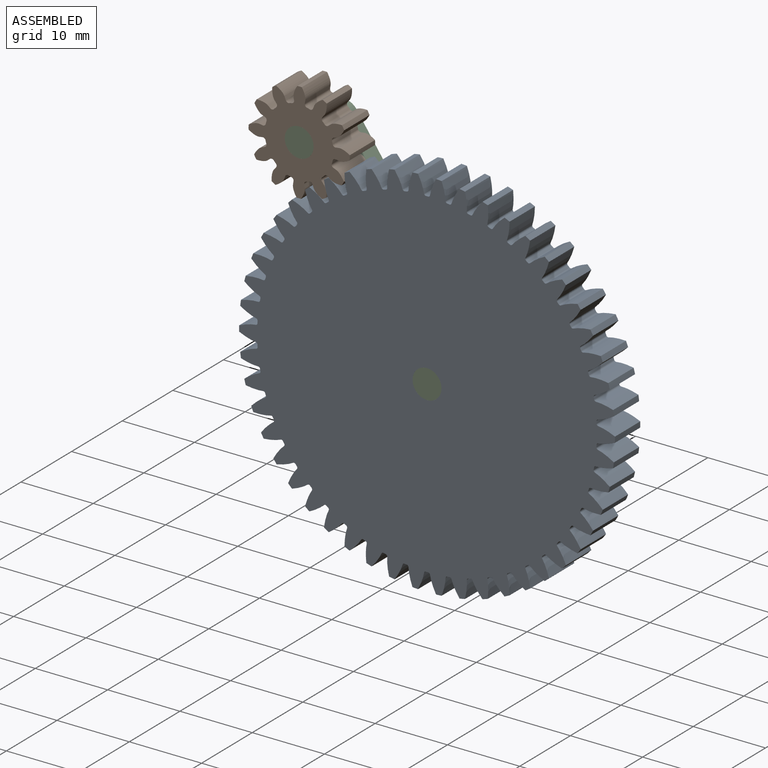
[diagram: assembled view]
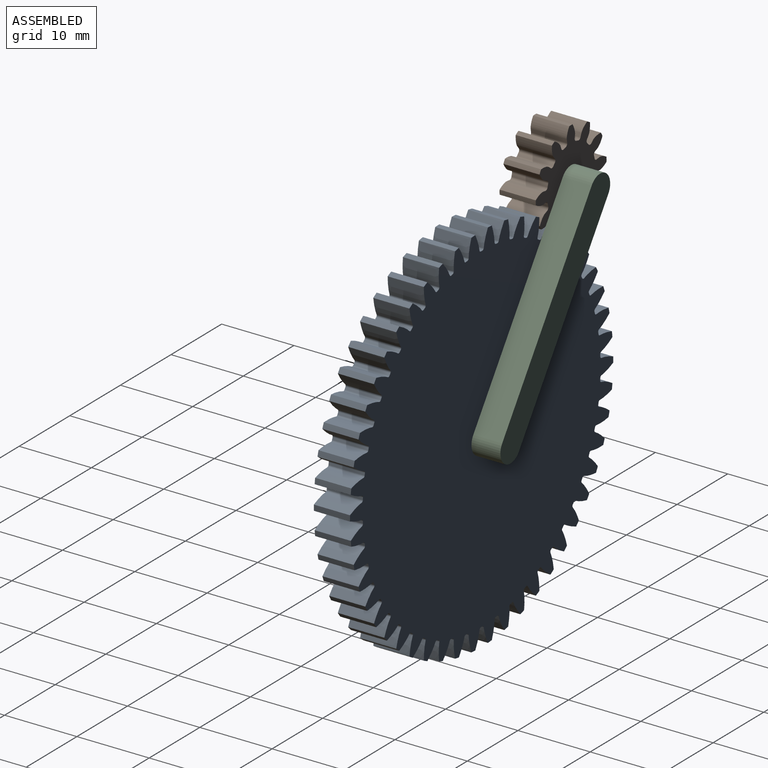
[diagram: assembled view, second angle]
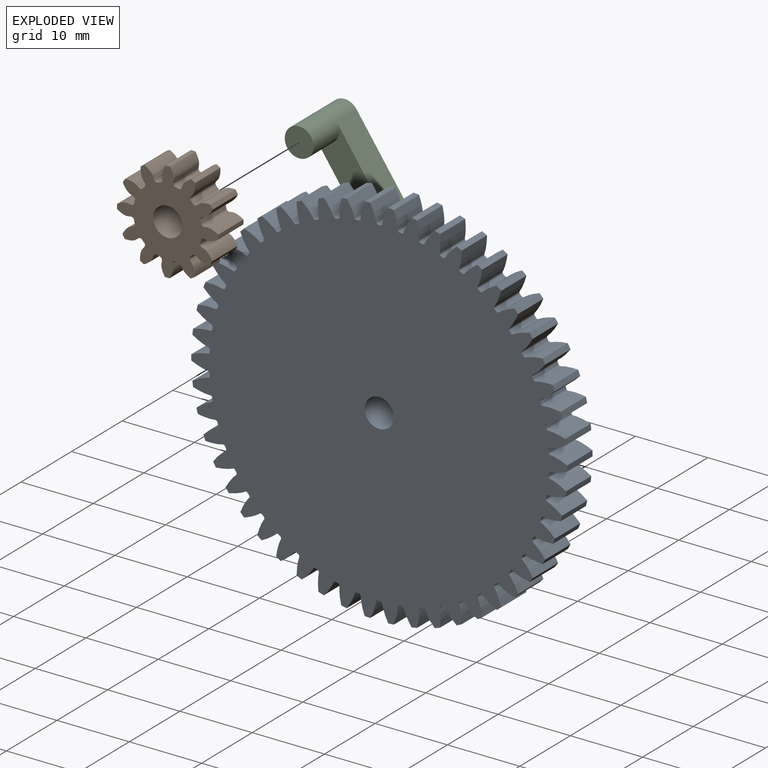
[diagram: exploded view]
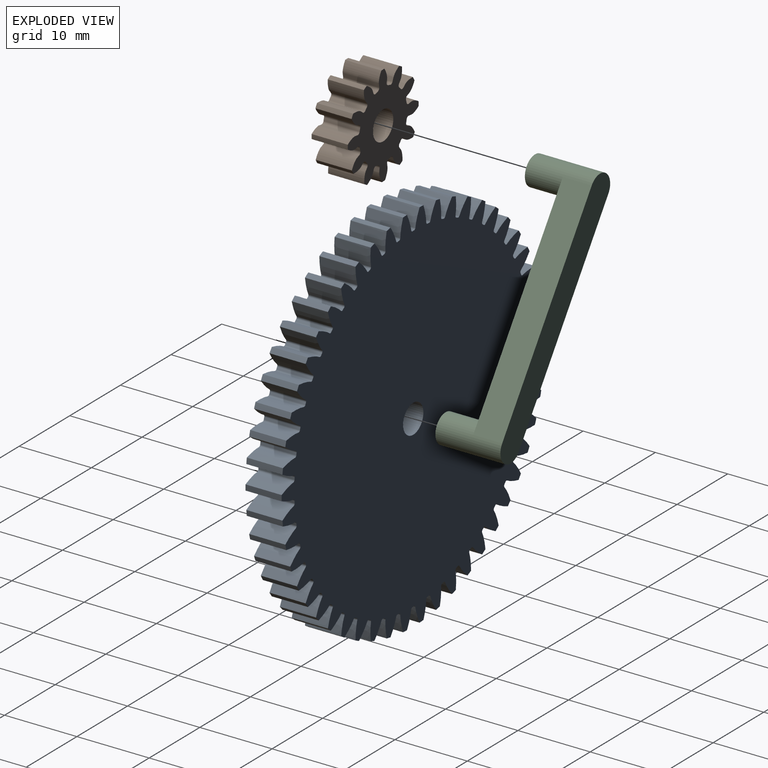
[diagram: exploded view, second angle]
ASSEMBLY  parts=3 mates=2
PART A: 303 faces, bbox 52x5x51.9 mm
  f0: extruded ~5x2.31mm, area 12.1mm2, adj f200,f201,f202,f203
  f1: cylinder r=23.49mm len=5mm, axis (0,1,0), area 1.5mm2, adj f201,f202,f203,f204
  f2: extruded ~5x2.2mm, area 12.1mm2, adj f3,f201,f202,f204
  f3: cylinder r=26mm len=5mm, axis (0,1,0), area 3.9mm2, adj f2,f4,f201,f202
  f4: extruded ~5x2.38mm, area 12.1mm2, adj f3,f201,f202,f205
  f5: cylinder r=23.49mm len=5mm, axis (0,1,0), area 1.5mm2, adj f201,f202,f205,f206
  f6: extruded ~5x2.06mm, area 12.1mm2, adj f7,f201,f202,f206
  f7: cylinder r=26mm len=5mm, axis (0,1,0), area 3.9mm2, adj f6,f8,f201,f202
  f8: extruded ~5x2.41mm, area 12.1mm2, adj f7,f201,f202,f207
  f9: cylinder r=23.49mm len=5mm, axis (0,1,0), area 1.5mm2, adj f201,f202,f207,f208
  f10: extruded ~5x1.89mm, area 12.1mm2, adj f11,f201,f202,f208
  f11: cylinder r=26mm len=5mm, axis (0,1,0), area 3.9mm2, adj f10,f12,f201,f202
  f12: extruded ~5x2.4mm, area 12.1mm2, adj f11,f201,f202,f209
  f13: cylinder r=23.49mm len=5mm, axis (0,1,0), area 1.5mm2, adj f201,f202,f209,f210
  f14: extruded ~5x1.72mm, area 12.1mm2, adj f15,f201,f202,f210
  f15: cylinder r=26mm len=5mm, axis (0,1,0), area 3.9mm2, adj f14,f16,f201,f202
  f16: extruded ~5x2.36mm, area 12.1mm2, adj f15,f201,f202,f211
  f17: cylinder r=23.49mm len=5mm, axis (0,1,0), area 1.5mm2, adj f201,f202,f211,f212
  f18: extruded ~5x1.92mm, area 12.1mm2, adj f19,f201,f202,f212
  f19: cylinder r=26mm len=5mm, axis (0,1,0), area 3.9mm2, adj f18,f20,f201,f202
  f20: extruded ~5x2.27mm, area 12.1mm2, adj f19,f201,f202,f213
  f21: cylinder r=23.49mm len=5mm, axis (0,1,0), area 1.5mm2, adj f201,f202,f213,f214
  f22: extruded ~5x2.08mm, area 12.1mm2, adj f23,f201,f202,f214
  f23: cylinder r=26mm len=5mm, axis (0,1,0), area 3.9mm2, adj f22,f24,f201,f202
  f24: extruded ~5x2.16mm, area 12.1mm2, adj f23,f201,f202,f215
  f25: cylinder r=23.49mm len=5mm, axis (0,1,0), area 1.5mm2, adj f201,f202,f215,f216
  f26: extruded ~5x2.22mm, area 12.1mm2, adj f27,f201,f202,f216
  f27: cylinder r=26mm len=5mm, axis (0,1,0), area 3.9mm2, adj f26,f28,f201,f202
  f28: extruded ~5x2mm, area 12.1mm2, adj f27,f201,f202,f217
  f29: cylinder r=23.49mm len=5mm, axis (0,1,0), area 1.5mm2, adj f201,f202,f217,f218
  f30: extruded ~5x2.32mm, area 12.1mm2, adj f31,f201,f202,f218
  f31: cylinder r=26mm len=5mm, axis (0,1,0), area 3.9mm2, adj f30,f32,f201,f202
  f32: extruded ~5x1.82mm, area 12.1mm2, adj f31,f201,f202,f219
  f33: cylinder r=23.49mm len=5mm, axis (0,1,0), area 1.5mm2, adj f201,f202,f219,f220
  f34: extruded ~5x2.38mm, area 12.1mm2, adj f35,f201,f202,f220
  f35: cylinder r=26mm len=5mm, axis (0,1,0), area 3.9mm2, adj f34,f36,f201,f202
  f36: extruded ~5x1.79mm, area 12.1mm2, adj f35,f201,f202,f221
  f37: cylinder r=23.49mm len=5mm, axis (0,1,0), area 1.5mm2, adj f201,f202,f221,f222
  f38: extruded ~5x2.41mm, area 12.1mm2, adj f39,f201,f202,f222
  f39: cylinder r=26mm len=5mm, axis (0,1,0), area 3.9mm2, adj f38,f40,f201,f202
  f40: extruded ~5x1.98mm, area 12.1mm2, adj f39,f201,f202,f223
  f41: cylinder r=23.49mm len=5mm, axis (0,1,0), area 1.5mm2, adj f201,f202,f223,f224
  f42: extruded ~5x2.4mm, area 12.1mm2, adj f43,f201,f202,f224
  f43: cylinder r=26mm len=5mm, axis (0,1,0), area 3.9mm2, adj f42,f44,f201,f202
  f44: extruded ~5x2.14mm, area 12.1mm2, adj f43,f201,f202,f225
  f45: cylinder r=23.49mm len=5mm, axis (0,1,0), area 1.5mm2, adj f201,f202,f225,f226
  f46: extruded ~5x2.35mm, area 12.1mm2, adj f47,f201,f202,f226
  f47: cylinder r=26mm len=5mm, axis (0,1,0), area 3.9mm2, adj f46,f48,f201,f202
  f48: extruded ~5x2.26mm, area 12.1mm2, adj f47,f201,f202,f227
  f49: cylinder r=23.49mm len=5mm, axis (0,1,0), area 1.5mm2, adj f201,f202,f227,f228
  f50: extruded ~5x2.26mm, area 12.1mm2, adj f51,f201,f202,f228
  f51: cylinder r=26mm len=5mm, axis (0,1,0), area 3.9mm2, adj f50,f52,f201,f202
  f52: extruded ~5x2.35mm, area 12.1mm2, adj f51,f201,f202,f229
  f53: cylinder r=23.49mm len=5mm, axis (0,1,0), area 1.5mm2, adj f201,f202,f229,f230
  f54: extruded ~5x2.14mm, area 12.1mm2, adj f55,f201,f202,f230
  f55: cylinder r=26mm len=5mm, axis (0,1,0), area 3.9mm2, adj f54,f56,f201,f202
  f56: extruded ~5x2.4mm, area 12.1mm2, adj f55,f201,f202,f231
  f57: cylinder r=23.49mm len=5mm, axis (0,1,0), area 1.5mm2, adj f201,f202,f231,f232
  f58: extruded ~5x1.98mm, area 12.1mm2, adj f59,f201,f202,f232
  f59: cylinder r=26mm len=5mm, axis (0,1,0), area 3.9mm2, adj f58,f60,f201,f202
  f60: extruded ~5x2.41mm, area 12.1mm2, adj f59,f201,f202,f233
  f61: cylinder r=23.49mm len=5mm, axis (0,1,0), area 1.5mm2, adj f201,f202,f233,f234
  f62: extruded ~5x1.79mm, area 12.1mm2, adj f63,f201,f202,f234
  f63: cylinder r=26mm len=5mm, axis (0,1,0), area 3.9mm2, adj f62,f64,f201,f202
  f64: extruded ~5x2.38mm, area 12.1mm2, adj f63,f201,f202,f235
  f65: cylinder r=23.49mm len=5mm, axis (0,1,0), area 1.5mm2, adj f201,f202,f235,f236
  f66: extruded ~5x1.82mm, area 12.1mm2, adj f67,f201,f202,f236
  f67: cylinder r=26mm len=5mm, axis (0,1,0), area 3.9mm2, adj f66,f68,f201,f202
  f68: extruded ~5x2.32mm, area 12.1mm2, adj f67,f201,f202,f237
  f69: cylinder r=23.49mm len=5mm, axis (0,1,0), area 1.5mm2, adj f201,f202,f237,f238
  f70: extruded ~5x2mm, area 12.1mm2, adj f71,f201,f202,f238
  f71: cylinder r=26mm len=5mm, axis (0,1,0), area 3.9mm2, adj f70,f72,f201,f202
  f72: extruded ~5x2.22mm, area 12.1mm2, adj f71,f201,f202,f239
  f73: cylinder r=23.49mm len=5mm, axis (0,1,0), area 1.5mm2, adj f201,f202,f239,f240
  f74: extruded ~5x2.16mm, area 12.1mm2, adj f75,f201,f202,f240
  f75: cylinder r=26mm len=5mm, axis (0,1,0), area 3.9mm2, adj f74,f76,f201,f202
  f76: extruded ~5x2.08mm, area 12.1mm2, adj f75,f201,f202,f241
  f77: cylinder r=23.49mm len=5mm, axis (0,1,0), area 1.5mm2, adj f201,f202,f241,f242
  f78: extruded ~5x2.27mm, area 12.1mm2, adj f79,f201,f202,f242
  f79: cylinder r=26mm len=5mm, axis (0,1,0), area 3.9mm2, adj f78,f80,f201,f202
  f80: extruded ~5x1.92mm, area 12.1mm2, adj f79,f201,f202,f243
  f81: cylinder r=23.49mm len=5mm, axis (0,1,0), area 1.5mm2, adj f201,f202,f243,f244
  f82: extruded ~5x2.36mm, area 12.1mm2, adj f83,f201,f202,f244
  f83: cylinder r=26mm len=5mm, axis (0,1,0), area 3.9mm2, adj f82,f84,f201,f202
  f84: extruded ~5x1.72mm, area 12.1mm2, adj f83,f201,f202,f245
  f85: cylinder r=23.49mm len=5mm, axis (0,1,0), area 1.5mm2, adj f201,f202,f245,f246
  f86: extruded ~5x2.4mm, area 12.1mm2, adj f87,f201,f202,f246
  f87: cylinder r=26mm len=5mm, axis (0,1,0), area 3.9mm2, adj f86,f88,f201,f202
  f88: extruded ~5x1.89mm, area 12.1mm2, adj f87,f201,f202,f247
  f89: cylinder r=23.49mm len=5mm, axis (0,1,0), area 1.5mm2, adj f201,f202,f247,f248
  f90: extruded ~5x2.41mm, area 12.1mm2, adj f91,f201,f202,f248
  f91: cylinder r=26mm len=5mm, axis (0,1,0), area 3.9mm2, adj f90,f92,f201,f202
  f92: extruded ~5x2.06mm, area 12.1mm2, adj f91,f201,f202,f249
  f93: cylinder r=23.49mm len=5mm, axis (0,1,0), area 1.5mm2, adj f201,f202,f249,f250
  f94: extruded ~5x2.38mm, area 12.1mm2, adj f95,f201,f202,f250
  f95: cylinder r=26mm len=5mm, axis (0,1,0), area 3.9mm2, adj f94,f96,f201,f202
  f96: extruded ~5x2.2mm, area 12.1mm2, adj f95,f201,f202,f251
  f97: cylinder r=23.49mm len=5mm, axis (0,1,0), area 1.5mm2, adj f201,f202,f251,f252
  f98: extruded ~5x2.31mm, area 12.1mm2, adj f99,f201,f202,f252
  f99: cylinder r=26mm len=5mm, axis (0,1,0), area 3.9mm2, adj f98,f100,f201,f202
  f100: extruded ~5x2.31mm, area 12.1mm2, adj f99,f201,f202,f253
  f101: cylinder r=23.49mm len=5mm, axis (0,1,0), area 1.5mm2, adj f201,f202,f253,f254
  f102: extruded ~5x2.2mm, area 12.1mm2, adj f103,f201,f202,f254
  f103: cylinder r=26mm len=5mm, axis (0,1,0), area 3.9mm2, adj f102,f104,f201,f202
  f104: extruded ~5x2.38mm, area 12.1mm2, adj f103,f201,f202,f255
  f105: cylinder r=23.49mm len=5mm, axis (0,1,0), area 1.5mm2, adj f201,f202,f255,f256
  f106: extruded ~5x2.06mm, area 12.1mm2, adj f107,f201,f202,f256
  f107: cylinder r=26mm len=5mm, axis (0,1,0), area 3.9mm2, adj f106,f108,f201,f202
  f108: extruded ~5x2.41mm, area 12.1mm2, adj f107,f201,f202,f257
  f109: cylinder r=23.49mm len=5mm, axis (0,1,0), area 1.5mm2, adj f201,f202,f257,f258
  f110: extruded ~5x1.89mm, area 12.1mm2, adj f111,f201,f202,f258
  f111: cylinder r=26mm len=5mm, axis (0,1,0), area 3.9mm2, adj f110,f112,f201,f202
  f112: extruded ~5x2.4mm, area 12.1mm2, adj f111,f201,f202,f259
  f113: cylinder r=23.49mm len=5mm, axis (0,1,0), area 1.5mm2, adj f201,f202,f259,f260
  f114: extruded ~5x1.72mm, area 12.1mm2, adj f115,f201,f202,f260
  f115: cylinder r=26mm len=5mm, axis (0,1,0), area 3.9mm2, adj f114,f116,f201,f202
  f116: extruded ~5x2.36mm, area 12.1mm2, adj f115,f201,f202,f261
  f117: cylinder r=23.49mm len=5mm, axis (0,1,0), area 1.5mm2, adj f201,f202,f261,f262
  f118: extruded ~5x1.92mm, area 12.1mm2, adj f119,f201,f202,f262
  f119: cylinder r=26mm len=5mm, axis (0,1,0), area 3.9mm2, adj f118,f120,f201,f202
  f120: extruded ~5x2.27mm, area 12.1mm2, adj f119,f201,f202,f263
  f121: cylinder r=23.49mm len=5mm, axis (0,1,0), area 1.5mm2, adj f201,f202,f263,f264
  f122: extruded ~5x2.08mm, area 12.1mm2, adj f123,f201,f202,f264
  f123: cylinder r=26mm len=5mm, axis (0,1,0), area 3.9mm2, adj f122,f124,f201,f202
  f124: extruded ~5x2.16mm, area 12.1mm2, adj f123,f201,f202,f265
  f125: cylinder r=23.49mm len=5mm, axis (0,1,0), area 1.5mm2, adj f201,f202,f265,f266
  f126: extruded ~5x2.22mm, area 12.1mm2, adj f127,f201,f202,f266
  f127: cylinder r=26mm len=5mm, axis (0,1,0), area 3.9mm2, adj f126,f128,f201,f202
  f128: extruded ~5x2mm, area 12.1mm2, adj f127,f201,f202,f267
  f129: cylinder r=23.49mm len=5mm, axis (0,1,0), area 1.5mm2, adj f201,f202,f267,f268
  f130: extruded ~5x2.32mm, area 12.1mm2, adj f131,f201,f202,f268
  f131: cylinder r=26mm len=5mm, axis (0,1,0), area 3.9mm2, adj f130,f132,f201,f202
  f132: extruded ~5x1.82mm, area 12.1mm2, adj f131,f201,f202,f269
  f133: cylinder r=23.49mm len=5mm, axis (0,1,0), area 1.5mm2, adj f201,f202,f269,f270
  f134: extruded ~5x2.38mm, area 12.1mm2, adj f135,f201,f202,f270
  f135: cylinder r=26mm len=5mm, axis (0,1,0), area 3.9mm2, adj f134,f136,f201,f202
  f136: extruded ~5x1.79mm, area 12.1mm2, adj f135,f201,f202,f271
  f137: cylinder r=23.49mm len=5mm, axis (0,1,0), area 1.5mm2, adj f201,f202,f271,f272
  f138: extruded ~5x2.41mm, area 12.1mm2, adj f139,f201,f202,f272
  f139: cylinder r=26mm len=5mm, axis (0,1,0), area 3.9mm2, adj f138,f140,f201,f202
  f140: extruded ~5x1.98mm, area 12.1mm2, adj f139,f201,f202,f273
  f141: cylinder r=23.49mm len=5mm, axis (0,1,0), area 1.5mm2, adj f201,f202,f273,f274
  f142: extruded ~5x2.4mm, area 12.1mm2, adj f143,f201,f202,f274
  f143: cylinder r=26mm len=5mm, axis (0,1,0), area 3.9mm2, adj f142,f144,f201,f202
  f144: extruded ~5x2.14mm, area 12.1mm2, adj f143,f201,f202,f275
  f145: cylinder r=23.49mm len=5mm, axis (0,1,0), area 1.5mm2, adj f201,f202,f275,f276
  f146: extruded ~5x2.35mm, area 12.1mm2, adj f147,f201,f202,f276
  f147: cylinder r=26mm len=5mm, axis (0,1,0), area 3.9mm2, adj f146,f148,f201,f202
  f148: extruded ~5x2.26mm, area 12.1mm2, adj f147,f201,f202,f277
  f149: cylinder r=23.49mm len=5mm, axis (0,1,0), area 1.5mm2, adj f201,f202,f277,f278
  f150: extruded ~5x2.26mm, area 12.1mm2, adj f151,f201,f202,f278
  f151: cylinder r=26mm len=5mm, axis (0,1,0), area 3.9mm2, adj f150,f152,f201,f202
  f152: extruded ~5x2.35mm, area 12.1mm2, adj f151,f201,f202,f279
  f153: cylinder r=23.49mm len=5mm, axis (0,1,0), area 1.5mm2, adj f201,f202,f279,f280
  f154: extruded ~5x2.14mm, area 12.1mm2, adj f155,f201,f202,f280
  f155: cylinder r=26mm len=5mm, axis (0,1,0), area 3.9mm2, adj f154,f156,f201,f202
  f156: extruded ~5x2.4mm, area 12.1mm2, adj f155,f201,f202,f281
  f157: cylinder r=23.49mm len=5mm, axis (0,1,0), area 1.5mm2, adj f201,f202,f281,f282
  f158: extruded ~5x1.98mm, area 12.1mm2, adj f159,f201,f202,f282
  f159: cylinder r=26mm len=5mm, axis (0,1,0), area 3.9mm2, adj f158,f160,f201,f202
  f160: extruded ~5x2.41mm, area 12.1mm2, adj f159,f201,f202,f283
  f161: cylinder r=23.49mm len=5mm, axis (0,1,0), area 1.5mm2, adj f201,f202,f283,f284
  f162: extruded ~5x1.79mm, area 12.1mm2, adj f163,f201,f202,f284
  f163: cylinder r=26mm len=5mm, axis (0,1,0), area 3.9mm2, adj f162,f164,f201,f202
  f164: extruded ~5x2.38mm, area 12.1mm2, adj f163,f201,f202,f285
  f165: cylinder r=23.49mm len=5mm, axis (0,1,0), area 1.5mm2, adj f201,f202,f285,f286
  f166: extruded ~5x1.82mm, area 12.1mm2, adj f167,f201,f202,f286
  f167: cylinder r=26mm len=5mm, axis (0,1,0), area 3.9mm2, adj f166,f168,f201,f202
  f168: extruded ~5x2.32mm, area 12.1mm2, adj f167,f201,f202,f287
  f169: cylinder r=23.49mm len=5mm, axis (0,1,0), area 1.5mm2, adj f201,f202,f287,f288
  f170: extruded ~5x2mm, area 12.1mm2, adj f171,f201,f202,f288
  f171: cylinder r=26mm len=5mm, axis (0,1,0), area 3.9mm2, adj f170,f172,f201,f202
  f172: extruded ~5x2.22mm, area 12.1mm2, adj f171,f201,f202,f289
  f173: cylinder r=23.49mm len=5mm, axis (0,1,0), area 1.5mm2, adj f201,f202,f289,f290
  f174: extruded ~5x2.16mm, area 12.1mm2, adj f175,f201,f202,f290
  f175: cylinder r=26mm len=5mm, axis (0,1,0), area 3.9mm2, adj f174,f176,f201,f202
  f176: extruded ~5x2.08mm, area 12.1mm2, adj f175,f201,f202,f291
  f177: cylinder r=23.49mm len=5mm, axis (0,1,0), area 1.5mm2, adj f201,f202,f291,f292
  f178: extruded ~5x2.27mm, area 12.1mm2, adj f179,f201,f202,f292
  f179: cylinder r=26mm len=5mm, axis (0,1,0), area 3.9mm2, adj f178,f180,f201,f202
  f180: extruded ~5x1.92mm, area 12.1mm2, adj f179,f201,f202,f293
  f181: cylinder r=23.49mm len=5mm, axis (0,1,0), area 1.5mm2, adj f201,f202,f293,f294
  f182: extruded ~5x2.36mm, area 12.1mm2, adj f183,f201,f202,f294
  f183: cylinder r=26mm len=5mm, axis (0,1,0), area 3.9mm2, adj f182,f184,f201,f202
  f184: extruded ~5x1.72mm, area 12.1mm2, adj f183,f201,f202,f295
  f185: cylinder r=23.49mm len=5mm, axis (0,1,0), area 1.5mm2, adj f201,f202,f295,f296
  f186: extruded ~5x2.4mm, area 12.1mm2, adj f187,f201,f202,f296
  f187: cylinder r=26mm len=5mm, axis (0,1,0), area 3.9mm2, adj f186,f188,f201,f202
  f188: extruded ~5x1.89mm, area 12.1mm2, adj f187,f201,f202,f297
  f189: cylinder r=23.49mm len=5mm, axis (0,1,0), area 1.5mm2, adj f201,f202,f297,f298
  f190: extruded ~5x2.41mm, area 12.1mm2, adj f191,f201,f202,f298
  f191: cylinder r=26mm len=5mm, axis (0,1,0), area 3.9mm2, adj f190,f192,f201,f202
  f192: extruded ~5x2.06mm, area 12.1mm2, adj f191,f201,f202,f299
  f193: cylinder r=23.49mm len=5mm, axis (0,1,0), area 1.5mm2, adj f201,f202,f299,f300
  f194: extruded ~5x2.38mm, area 12.1mm2, adj f195,f201,f202,f300
  f195: cylinder r=26mm len=5mm, axis (0,1,0), area 3.9mm2, adj f194,f196,f201,f202
  f196: extruded ~5x2.2mm, area 12.1mm2, adj f195,f201,f202,f301
  f197: cylinder r=23.49mm len=5mm, axis (0,1,0), area 1.5mm2, adj f201,f202,f301,f302
  f198: extruded ~5x2.31mm, area 12.1mm2, adj f200,f201,f202,f302
  f199: cylinder r=2mm len=5mm, axis (0,1,0), area 62.8mm2, adj f201,f202
  f200: cylinder r=26mm len=5mm, axis (0,1,0), area 3.9mm2, adj f0,f198,f201,f202
  f201: plane 52x51.94mm, normal (0,-1,0), area 1929.1mm2, adj f0,f1,f2,f3,f4,f5,f6,f7
  f202: plane 52x51.94mm, normal (0,1,0), area 1929.1mm2, adj f0,f1,f2,f3,f4,f5,f6,f7
  f203: cylinder r=0.26mm len=5mm, axis (0,1,0), area 1.8mm2, adj f0,f1,f201,f202
  f204: cylinder r=0.26mm len=5mm, axis (0,1,0), area 1.8mm2, adj f1,f2,f201,f202
  f205: cylinder r=0.26mm len=5mm, axis (0,1,0), area 1.8mm2, adj f4,f5,f201,f202
  f206: cylinder r=0.26mm len=5mm, axis (0,1,0), area 1.8mm2, adj f5,f6,f201,f202
  f207: cylinder r=0.26mm len=5mm, axis (0,1,0), area 1.8mm2, adj f8,f9,f201,f202
  f208: cylinder r=0.26mm len=5mm, axis (0,1,0), area 1.8mm2, adj f9,f10,f201,f202
  f209: cylinder r=0.26mm len=5mm, axis (0,1,0), area 1.8mm2, adj f12,f13,f201,f202
  f210: cylinder r=0.26mm len=5mm, axis (0,1,0), area 1.8mm2, adj f13,f14,f201,f202
  f211: cylinder r=0.26mm len=5mm, axis (0,1,0), area 1.8mm2, adj f16,f17,f201,f202
  f212: cylinder r=0.26mm len=5mm, axis (0,1,0), area 1.8mm2, adj f17,f18,f201,f202
  f213: cylinder r=0.26mm len=5mm, axis (0,1,0), area 1.8mm2, adj f20,f21,f201,f202
  f214: cylinder r=0.26mm len=5mm, axis (0,1,0), area 1.8mm2, adj f21,f22,f201,f202
  f215: cylinder r=0.26mm len=5mm, axis (0,1,0), area 1.8mm2, adj f24,f25,f201,f202
  f216: cylinder r=0.26mm len=5mm, axis (0,1,0), area 1.8mm2, adj f25,f26,f201,f202
  f217: cylinder r=0.26mm len=5mm, axis (0,1,0), area 1.8mm2, adj f28,f29,f201,f202
  f218: cylinder r=0.26mm len=5mm, axis (0,1,0), area 1.8mm2, adj f29,f30,f201,f202
  f219: cylinder r=0.26mm len=5mm, axis (0,1,0), area 1.8mm2, adj f32,f33,f201,f202
  f220: cylinder r=0.26mm len=5mm, axis (0,1,0), area 1.8mm2, adj f33,f34,f201,f202
  f221: cylinder r=0.26mm len=5mm, axis (0,1,0), area 1.8mm2, adj f36,f37,f201,f202
  f222: cylinder r=0.26mm len=5mm, axis (0,1,0), area 1.8mm2, adj f37,f38,f201,f202
  f223: cylinder r=0.26mm len=5mm, axis (0,1,0), area 1.8mm2, adj f40,f41,f201,f202
  f224: cylinder r=0.26mm len=5mm, axis (0,1,0), area 1.8mm2, adj f41,f42,f201,f202
  f225: cylinder r=0.26mm len=5mm, axis (0,1,0), area 1.8mm2, adj f44,f45,f201,f202
  f226: cylinder r=0.26mm len=5mm, axis (0,1,0), area 1.8mm2, adj f45,f46,f201,f202
  f227: cylinder r=0.26mm len=5mm, axis (0,1,0), area 1.8mm2, adj f48,f49,f201,f202
  f228: cylinder r=0.26mm len=5mm, axis (0,1,0), area 1.8mm2, adj f49,f50,f201,f202
  f229: cylinder r=0.26mm len=5mm, axis (0,1,0), area 1.8mm2, adj f52,f53,f201,f202
  f230: cylinder r=0.26mm len=5mm, axis (0,1,0), area 1.8mm2, adj f53,f54,f201,f202
  f231: cylinder r=0.26mm len=5mm, axis (0,1,0), area 1.8mm2, adj f56,f57,f201,f202
  f232: cylinder r=0.26mm len=5mm, axis (0,1,0), area 1.8mm2, adj f57,f58,f201,f202
  f233: cylinder r=0.26mm len=5mm, axis (0,1,0), area 1.8mm2, adj f60,f61,f201,f202
  f234: cylinder r=0.26mm len=5mm, axis (0,1,0), area 1.8mm2, adj f61,f62,f201,f202
  f235: cylinder r=0.26mm len=5mm, axis (0,1,0), area 1.8mm2, adj f64,f65,f201,f202
  f236: cylinder r=0.26mm len=5mm, axis (0,1,0), area 1.8mm2, adj f65,f66,f201,f202
  f237: cylinder r=0.26mm len=5mm, axis (0,1,0), area 1.8mm2, adj f68,f69,f201,f202
  f238: cylinder r=0.26mm len=5mm, axis (0,1,0), area 1.8mm2, adj f69,f70,f201,f202
  f239: cylinder r=0.26mm len=5mm, axis (0,1,0), area 1.8mm2, adj f72,f73,f201,f202
  f240: cylinder r=0.26mm len=5mm, axis (0,1,0), area 1.8mm2, adj f73,f74,f201,f202
  f241: cylinder r=0.26mm len=5mm, axis (0,1,0), area 1.8mm2, adj f76,f77,f201,f202
  f242: cylinder r=0.26mm len=5mm, axis (0,1,0), area 1.8mm2, adj f77,f78,f201,f202
  f243: cylinder r=0.26mm len=5mm, axis (0,1,0), area 1.8mm2, adj f80,f81,f201,f202
  f244: cylinder r=0.26mm len=5mm, axis (0,1,0), area 1.8mm2, adj f81,f82,f201,f202
  f245: cylinder r=0.26mm len=5mm, axis (0,1,0), area 1.8mm2, adj f84,f85,f201,f202
  f246: cylinder r=0.26mm len=5mm, axis (0,1,0), area 1.8mm2, adj f85,f86,f201,f202
  f247: cylinder r=0.26mm len=5mm, axis (0,1,0), area 1.8mm2, adj f88,f89,f201,f202
  f248: cylinder r=0.26mm len=5mm, axis (0,1,0), area 1.8mm2, adj f89,f90,f201,f202
  f249: cylinder r=0.26mm len=5mm, axis (0,1,0), area 1.8mm2, adj f92,f93,f201,f202
  f250: cylinder r=0.26mm len=5mm, axis (0,1,0), area 1.8mm2, adj f93,f94,f201,f202
  f251: cylinder r=0.26mm len=5mm, axis (0,1,0), area 1.8mm2, adj f96,f97,f201,f202
  f252: cylinder r=0.26mm len=5mm, axis (0,1,0), area 1.8mm2, adj f97,f98,f201,f202
  f253: cylinder r=0.26mm len=5mm, axis (0,1,0), area 1.8mm2, adj f100,f101,f201,f202
  f254: cylinder r=0.26mm len=5mm, axis (0,1,0), area 1.8mm2, adj f101,f102,f201,f202
  f255: cylinder r=0.26mm len=5mm, axis (0,1,0), area 1.8mm2, adj f104,f105,f201,f202
  f256: cylinder r=0.26mm len=5mm, axis (0,1,0), area 1.8mm2, adj f105,f106,f201,f202
  f257: cylinder r=0.26mm len=5mm, axis (0,1,0), area 1.8mm2, adj f108,f109,f201,f202
  f258: cylinder r=0.26mm len=5mm, axis (0,1,0), area 1.8mm2, adj f109,f110,f201,f202
  f259: cylinder r=0.26mm len=5mm, axis (0,1,0), area 1.8mm2, adj f112,f113,f201,f202
  f260: cylinder r=0.26mm len=5mm, axis (0,1,0), area 1.8mm2, adj f113,f114,f201,f202
  f261: cylinder r=0.26mm len=5mm, axis (0,1,0), area 1.8mm2, adj f116,f117,f201,f202
  f262: cylinder r=0.26mm len=5mm, axis (0,1,0), area 1.8mm2, adj f117,f118,f201,f202
  f263: cylinder r=0.26mm len=5mm, axis (0,1,0), area 1.8mm2, adj f120,f121,f201,f202
  f264: cylinder r=0.26mm len=5mm, axis (0,1,0), area 1.8mm2, adj f121,f122,f201,f202
  f265: cylinder r=0.26mm len=5mm, axis (0,1,0), area 1.8mm2, adj f124,f125,f201,f202
  f266: cylinder r=0.26mm len=5mm, axis (0,1,0), area 1.8mm2, adj f125,f126,f201,f202
  f267: cylinder r=0.26mm len=5mm, axis (0,1,0), area 1.8mm2, adj f128,f129,f201,f202
  f268: cylinder r=0.26mm len=5mm, axis (0,1,0), area 1.8mm2, adj f129,f130,f201,f202
  f269: cylinder r=0.26mm len=5mm, axis (0,1,0), area 1.8mm2, adj f132,f133,f201,f202
  f270: cylinder r=0.26mm len=5mm, axis (0,1,0), area 1.8mm2, adj f133,f134,f201,f202
  f271: cylinder r=0.26mm len=5mm, axis (0,1,0), area 1.8mm2, adj f136,f137,f201,f202
  f272: cylinder r=0.26mm len=5mm, axis (0,1,0), area 1.8mm2, adj f137,f138,f201,f202
  f273: cylinder r=0.26mm len=5mm, axis (0,1,0), area 1.8mm2, adj f140,f141,f201,f202
  f274: cylinder r=0.26mm len=5mm, axis (0,1,0), area 1.8mm2, adj f141,f142,f201,f202
  f275: cylinder r=0.26mm len=5mm, axis (0,1,0), area 1.8mm2, adj f144,f145,f201,f202
  f276: cylinder r=0.26mm len=5mm, axis (0,1,0), area 1.8mm2, adj f145,f146,f201,f202
  f277: cylinder r=0.26mm len=5mm, axis (0,1,0), area 1.8mm2, adj f148,f149,f201,f202
  f278: cylinder r=0.26mm len=5mm, axis (0,1,0), area 1.8mm2, adj f149,f150,f201,f202
  f279: cylinder r=0.26mm len=5mm, axis (0,1,0), area 1.8mm2, adj f152,f153,f201,f202
  f280: cylinder r=0.26mm len=5mm, axis (0,1,0), area 1.8mm2, adj f153,f154,f201,f202
  f281: cylinder r=0.26mm len=5mm, axis (0,1,0), area 1.8mm2, adj f156,f157,f201,f202
  f282: cylinder r=0.26mm len=5mm, axis (0,1,0), area 1.8mm2, adj f157,f158,f201,f202
  f283: cylinder r=0.26mm len=5mm, axis (0,1,0), area 1.8mm2, adj f160,f161,f201,f202
  f284: cylinder r=0.26mm len=5mm, axis (0,1,0), area 1.8mm2, adj f161,f162,f201,f202
  f285: cylinder r=0.26mm len=5mm, axis (0,1,0), area 1.8mm2, adj f164,f165,f201,f202
  f286: cylinder r=0.26mm len=5mm, axis (0,1,0), area 1.8mm2, adj f165,f166,f201,f202
  f287: cylinder r=0.26mm len=5mm, axis (0,1,0), area 1.8mm2, adj f168,f169,f201,f202
  f288: cylinder r=0.26mm len=5mm, axis (0,1,0), area 1.8mm2, adj f169,f170,f201,f202
  f289: cylinder r=0.26mm len=5mm, axis (0,1,0), area 1.8mm2, adj f172,f173,f201,f202
  f290: cylinder r=0.26mm len=5mm, axis (0,1,0), area 1.8mm2, adj f173,f174,f201,f202
  f291: cylinder r=0.26mm len=5mm, axis (0,1,0), area 1.8mm2, adj f176,f177,f201,f202
  f292: cylinder r=0.26mm len=5mm, axis (0,1,0), area 1.8mm2, adj f177,f178,f201,f202
  f293: cylinder r=0.26mm len=5mm, axis (0,1,0), area 1.8mm2, adj f180,f181,f201,f202
  f294: cylinder r=0.26mm len=5mm, axis (0,1,0), area 1.8mm2, adj f181,f182,f201,f202
  f295: cylinder r=0.26mm len=5mm, axis (0,1,0), area 1.8mm2, adj f184,f185,f201,f202
  f296: cylinder r=0.26mm len=5mm, axis (0,1,0), area 1.8mm2, adj f185,f186,f201,f202
  f297: cylinder r=0.26mm len=5mm, axis (0,1,0), area 1.8mm2, adj f188,f189,f201,f202
  f298: cylinder r=0.26mm len=5mm, axis (0,1,0), area 1.8mm2, adj f189,f190,f201,f202
  f299: cylinder r=0.26mm len=5mm, axis (0,1,0), area 1.8mm2, adj f192,f193,f201,f202
  f300: cylinder r=0.26mm len=5mm, axis (0,1,0), area 1.8mm2, adj f193,f194,f201,f202
  f301: cylinder r=0.26mm len=5mm, axis (0,1,0), area 1.8mm2, adj f196,f197,f201,f202
  f302: cylinder r=0.26mm len=5mm, axis (0,1,0), area 1.8mm2, adj f197,f198,f201,f202
PART B: 75 faces, bbox 13.7x5x13.7 mm
  f0: extruded ~5x1.77mm, area 10.2mm2, adj f48,f49,f50,f51
  f1: cylinder r=4.75mm len=5mm, axis (0,1,0), area 2.1mm2, adj f49,f50,f51,f52
  f2: extruded ~5x1.77mm, area 10.2mm2, adj f3,f49,f50,f52
  f3: cylinder r=7mm len=5mm, axis (0,1,0), area 3.1mm2, adj f2,f4,f49,f50
  f4: extruded ~5x1.99mm, area 10.2mm2, adj f3,f49,f50,f53
  f5: cylinder r=4.75mm len=5mm, axis (0,1,0), area 2.1mm2, adj f49,f50,f53,f54
  f6: extruded ~5x1.68mm, area 10.2mm2, adj f7,f49,f50,f54
  f7: cylinder r=7mm len=5mm, axis (0,1,0), area 3.1mm2, adj f6,f8,f49,f50
  f8: extruded ~5x1.68mm, area 10.2mm2, adj f7,f49,f50,f55
  f9: cylinder r=4.75mm len=5mm, axis (0,1,0), area 2.1mm2, adj f49,f50,f55,f56
  f10: extruded ~5x1.99mm, area 10.2mm2, adj f11,f49,f50,f56
  f11: cylinder r=7mm len=5mm, axis (0,1,0), area 3.1mm2, adj f10,f12,f49,f50
  f12: extruded ~5x1.77mm, area 10.2mm2, adj f11,f49,f50,f57
  f13: cylinder r=4.75mm len=5mm, axis (0,1,0), area 2.1mm2, adj f49,f50,f57,f58
  f14: extruded ~5x1.77mm, area 10.2mm2, adj f15,f49,f50,f58
  f15: cylinder r=7mm len=5mm, axis (0,1,0), area 3.1mm2, adj f14,f16,f49,f50
  f16: extruded ~5x1.99mm, area 10.2mm2, adj f15,f49,f50,f59
  f17: cylinder r=4.75mm len=5mm, axis (0,1,0), area 2.1mm2, adj f49,f50,f59,f60
  f18: extruded ~5x1.68mm, area 10.2mm2, adj f19,f49,f50,f60
  f19: cylinder r=7mm len=5mm, axis (0,1,0), area 3.1mm2, adj f18,f20,f49,f50
  f20: extruded ~5x1.68mm, area 10.2mm2, adj f19,f49,f50,f61
  f21: cylinder r=4.75mm len=5mm, axis (0,1,0), area 2.1mm2, adj f49,f50,f61,f62
  f22: extruded ~5x1.99mm, area 10.2mm2, adj f23,f49,f50,f62
  f23: cylinder r=7mm len=5mm, axis (0,1,0), area 3.1mm2, adj f22,f24,f49,f50
  f24: extruded ~5x1.77mm, area 10.2mm2, adj f23,f49,f50,f63
  f25: cylinder r=4.75mm len=5mm, axis (0,1,0), area 2.1mm2, adj f49,f50,f63,f64
  f26: extruded ~5x1.77mm, area 10.2mm2, adj f27,f49,f50,f64
  f27: cylinder r=7mm len=5mm, axis (0,1,0), area 3.1mm2, adj f26,f28,f49,f50
  f28: extruded ~5x1.99mm, area 10.2mm2, adj f27,f49,f50,f65
  f29: cylinder r=4.75mm len=5mm, axis (0,1,0), area 2.1mm2, adj f49,f50,f65,f66
  f30: extruded ~5x1.68mm, area 10.2mm2, adj f31,f49,f50,f66
  f31: cylinder r=7mm len=5mm, axis (0,1,0), area 3.1mm2, adj f30,f32,f49,f50
  f32: extruded ~5x1.68mm, area 10.2mm2, adj f31,f49,f50,f67
  f33: cylinder r=4.75mm len=5mm, axis (0,1,0), area 2.1mm2, adj f49,f50,f67,f68
  f34: extruded ~5x1.99mm, area 10.2mm2, adj f35,f49,f50,f68
  f35: cylinder r=7mm len=5mm, axis (0,1,0), area 3.1mm2, adj f34,f36,f49,f50
  f36: extruded ~5x1.77mm, area 10.2mm2, adj f35,f49,f50,f69
  f37: cylinder r=4.75mm len=5mm, axis (0,1,0), area 2.1mm2, adj f49,f50,f69,f70
  f38: extruded ~5x1.77mm, area 10.2mm2, adj f39,f49,f50,f70
  f39: cylinder r=7mm len=5mm, axis (0,1,0), area 3.1mm2, adj f38,f40,f49,f50
  f40: extruded ~5x1.99mm, area 10.2mm2, adj f39,f49,f50,f71
  f41: cylinder r=4.75mm len=5mm, axis (0,1,0), area 2.1mm2, adj f49,f50,f71,f72
  f42: extruded ~5x1.68mm, area 10.2mm2, adj f43,f49,f50,f72
  f43: cylinder r=7mm len=5mm, axis (0,1,0), area 3.1mm2, adj f42,f44,f49,f50
  f44: extruded ~5x1.68mm, area 10.2mm2, adj f43,f49,f50,f73
  f45: cylinder r=4.75mm len=5mm, axis (0,1,0), area 2.1mm2, adj f49,f50,f73,f74
  f46: extruded ~5x1.99mm, area 10.2mm2, adj f48,f49,f50,f74
  f47: cylinder r=2mm len=5mm, axis (0,1,0), area 62.8mm2, adj f49,f50
  f48: cylinder r=7mm len=5mm, axis (0,1,0), area 3.1mm2, adj f0,f46,f49,f50
  f49: plane 13.71x13.71mm, normal (0,-1,0), area 96.2mm2, adj f0,f1,f2,f3,f4,f5,f6,f7
  f50: plane 13.71x13.71mm, normal (0,1,0), area 96.2mm2, adj f0,f1,f2,f3,f4,f5,f6,f7
  f51: cylinder r=0.37mm len=5mm, axis (0,1,0), area 2.8mm2, adj f0,f1,f49,f50
  f52: cylinder r=0.37mm len=5mm, axis (0,1,0), area 2.8mm2, adj f1,f2,f49,f50
  f53: cylinder r=0.37mm len=5mm, axis (0,1,0), area 2.8mm2, adj f4,f5,f49,f50
  f54: cylinder r=0.37mm len=5mm, axis (0,1,0), area 2.8mm2, adj f5,f6,f49,f50
  f55: cylinder r=0.37mm len=5mm, axis (0,1,0), area 2.8mm2, adj f8,f9,f49,f50
  f56: cylinder r=0.37mm len=5mm, axis (0,1,0), area 2.8mm2, adj f9,f10,f49,f50
  f57: cylinder r=0.37mm len=5mm, axis (0,1,0), area 2.8mm2, adj f12,f13,f49,f50
  f58: cylinder r=0.37mm len=5mm, axis (0,1,0), area 2.8mm2, adj f13,f14,f49,f50
  f59: cylinder r=0.37mm len=5mm, axis (0,1,0), area 2.8mm2, adj f16,f17,f49,f50
  f60: cylinder r=0.37mm len=5mm, axis (0,1,0), area 2.8mm2, adj f17,f18,f49,f50
  f61: cylinder r=0.37mm len=5mm, axis (0,1,0), area 2.8mm2, adj f20,f21,f49,f50
  f62: cylinder r=0.37mm len=5mm, axis (0,1,0), area 2.8mm2, adj f21,f22,f49,f50
  f63: cylinder r=0.37mm len=5mm, axis (0,1,0), area 2.8mm2, adj f24,f25,f49,f50
  f64: cylinder r=0.37mm len=5mm, axis (0,1,0), area 2.8mm2, adj f25,f26,f49,f50
  f65: cylinder r=0.37mm len=5mm, axis (0,1,0), area 2.8mm2, adj f28,f29,f49,f50
  f66: cylinder r=0.37mm len=5mm, axis (0,1,0), area 2.8mm2, adj f29,f30,f49,f50
  f67: cylinder r=0.37mm len=5mm, axis (0,1,0), area 2.8mm2, adj f32,f33,f49,f50
  f68: cylinder r=0.37mm len=5mm, axis (0,1,0), area 2.8mm2, adj f33,f34,f49,f50
  f69: cylinder r=0.37mm len=5mm, axis (0,1,0), area 2.8mm2, adj f36,f37,f49,f50
  f70: cylinder r=0.37mm len=5mm, axis (0,1,0), area 2.8mm2, adj f37,f38,f49,f50
  f71: cylinder r=0.37mm len=5mm, axis (0,1,0), area 2.8mm2, adj f40,f41,f49,f50
  f72: cylinder r=0.37mm len=5mm, axis (0,1,0), area 2.8mm2, adj f41,f42,f49,f50
  f73: cylinder r=0.37mm len=5mm, axis (0,1,0), area 2.8mm2, adj f44,f45,f49,f50
  f74: cylinder r=0.37mm len=5mm, axis (0,1,0), area 2.8mm2, adj f45,f46,f49,f50
PART C: 8 faces, bbox 35x9x4 mm
  f0: cylinder r=2mm len=9mm, axis (0,1,0), area 88mm2, adj f1,f4,f5,f6,f7
  f1: plane 4x4mm, normal (0,-1,0), area 12.6mm2, adj f0
  f2: cylinder r=2mm len=9mm, axis (0,1,0), area 88mm2, adj f3,f4,f5,f6,f7
  f3: plane 4x4mm, normal (0,-1,0), area 12.6mm2, adj f2
  f4: plane 31.03x4mm, normal (0,0,-1), area 124.1mm2, adj f0,f2,f6,f7
  f5: plane 31.03x4mm, normal (0,0,1), area 124.1mm2, adj f0,f2,f6,f7
  f6: plane 35.03x4mm, normal (0,1,0), area 136.7mm2, adj f0,f2,f4,f5
  f7: plane 31.03x4mm, normal (0,-1,0), area 111.5mm2, adj f0,f2,f4,f5
PLACE A t=(-37.06,-4.8,-18.13)mm fixed
PLACE B rot(axis=(0,-1,0),134.6deg) t=(-11.11,-4.8,75.4)mm
PLACE C rot(axis=(0,1,0),55.2deg) t=(-57.25,-4.8,16.6)mm
MATE revolute C.f0 <-> B.f1  axis (0,-1,0) through (-31.65,-9.8,44.02)mm
MATE revolute A.f1 <-> C.f2  axis (0,-1,0) through (-13.97,-9.8,18.53)mm
